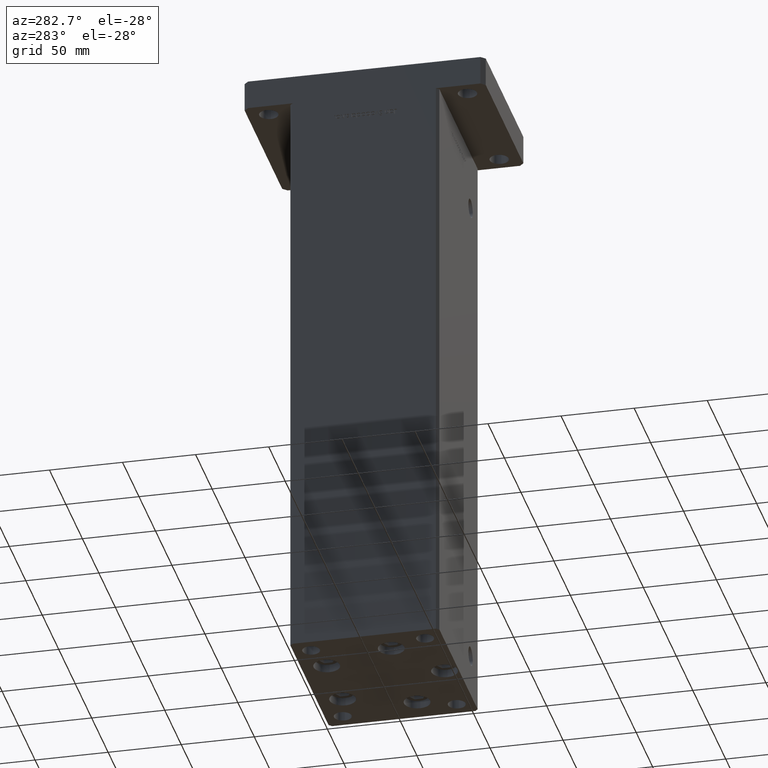
[diagram: clean part render]
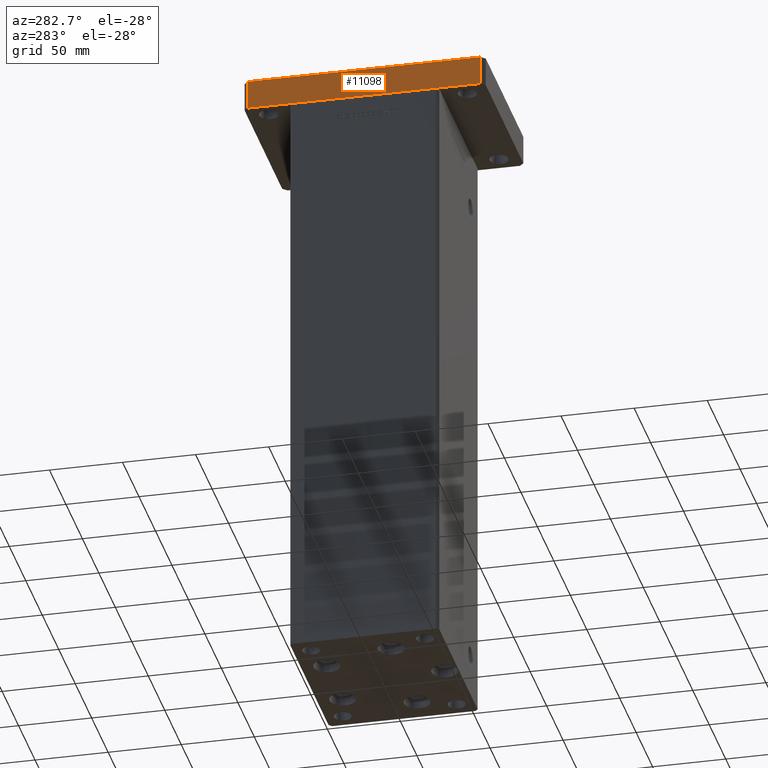
[diagram: same view with one face highlighted and labeled with its STEP entity id]
A machine part, auxiliary view. The second image highlights one B-rep face of the part: STEP entity #11098.
In plain terms, the highlighted planar face has unit normal (1, 0, 0).
Its self-contained STEP definition (entity closure, byte-faithful):
#1912 = CARTESIAN_POINT ( 'NONE',  ( -60.00000000000002842, 79.50000000000001421, 0.000000000000000000 ) ) ;
#1919 = DIRECTION ( 'NONE',  ( -0.000000000000000000, -0.000000000000000000, -1.000000000000000000 ) ) ;
#2148 = EDGE_CURVE ( 'NONE', #5105, #12423, #10877, .T. ) ;
#2879 = CARTESIAN_POINT ( 'NONE',  ( -60.00000000000002842, 79.50000000000001421, 20.00000000000000000 ) ) ;
#2918 = DIRECTION ( 'NONE',  ( 2.618450529776312260E-16, -1.000000000000000000, 0.000000000000000000 ) ) ;
#5105 = VERTEX_POINT ( 'NONE', #36557 ) ;
#9359 = EDGE_CURVE ( 'NONE', #48738, #5105, #37563, .T. ) ;
#9628 = VECTOR ( 'NONE', #20699, 1000.000000000000000 ) ;
#10338 = LINE ( 'NONE', #26929, #17871 ) ;
#10877 = LINE ( 'NONE', #1912, #47616 ) ;
#11098 = ADVANCED_FACE ( 'NONE', ( #44221 ), #27612, .F. ) ;
#12423 = VERTEX_POINT ( 'NONE', #40938 ) ;
#15978 = ORIENTED_EDGE ( 'NONE', *, *, #31554, .F. ) ;
#16973 = CARTESIAN_POINT ( 'NONE',  ( -59.99999999999998579, -79.50000000000002842, 20.00000000000000000 ) ) ;
#17648 = CARTESIAN_POINT ( 'NONE',  ( -60.00000000000002842, 79.50000000000001421, 20.00000000000000000 ) ) ;
#17871 = VECTOR ( 'NONE', #1919, 1000.000000000000000 ) ;
#18503 = EDGE_LOOP ( 'NONE', ( #41652, #33990, #15978, #30916 ) ) ;
#19462 = DIRECTION ( 'NONE',  ( -2.618450529776312260E-16, 1.000000000000000000, 0.000000000000000000 ) ) ;
#19747 = EDGE_CURVE ( 'NONE', #50433, #12423, #10338, .T. ) ;
#20699 = DIRECTION ( 'NONE',  ( -0.000000000000000000, -0.000000000000000000, -1.000000000000000000 ) ) ;
#22566 = DIRECTION ( 'NONE',  ( 2.618450529776312260E-16, -1.000000000000000000, 0.000000000000000000 ) ) ;
#24347 = VECTOR ( 'NONE', #2918, 1000.000000000000000 ) ;
#26929 = CARTESIAN_POINT ( 'NONE',  ( -59.99999999999998579, -79.50000000000002842, 20.00000000000000000 ) ) ;
#27612 = PLANE ( 'NONE',  #36578 ) ;
#30916 = ORIENTED_EDGE ( 'NONE', *, *, #9359, .T. ) ;
#31554 = EDGE_CURVE ( 'NONE', #48738, #50433, #52687, .T. ) ;
#32940 = CARTESIAN_POINT ( 'NONE',  ( -60.00000000000002842, 79.50000000000001421, 20.00000000000000000 ) ) ;
#33990 = ORIENTED_EDGE ( 'NONE', *, *, #19747, .F. ) ;
#36557 = CARTESIAN_POINT ( 'NONE',  ( -60.00000000000002842, 79.50000000000001421, 0.000000000000000000 ) ) ;
#36578 = AXIS2_PLACEMENT_3D ( 'NONE', #2879, #52912, #19462 ) ;
#37563 = LINE ( 'NONE', #32940, #9628 ) ;
#40938 = CARTESIAN_POINT ( 'NONE',  ( -59.99999999999998579, -79.50000000000002842, 0.000000000000000000 ) ) ;
#41652 = ORIENTED_EDGE ( 'NONE', *, *, #2148, .T. ) ;
#43989 = CARTESIAN_POINT ( 'NONE',  ( -60.00000000000002842, 79.50000000000001421, 20.00000000000000000 ) ) ;
#44221 = FACE_OUTER_BOUND ( 'NONE', #18503, .T. ) ;
#47616 = VECTOR ( 'NONE', #22566, 1000.000000000000000 ) ;
#48738 = VERTEX_POINT ( 'NONE', #17648 ) ;
#50433 = VERTEX_POINT ( 'NONE', #16973 ) ;
#52687 = LINE ( 'NONE', #43989, #24347 ) ;
#52912 = DIRECTION ( 'NONE',  ( 1.000000000000000000, 2.618450529776312260E-16, -0.000000000000000000 ) ) ;